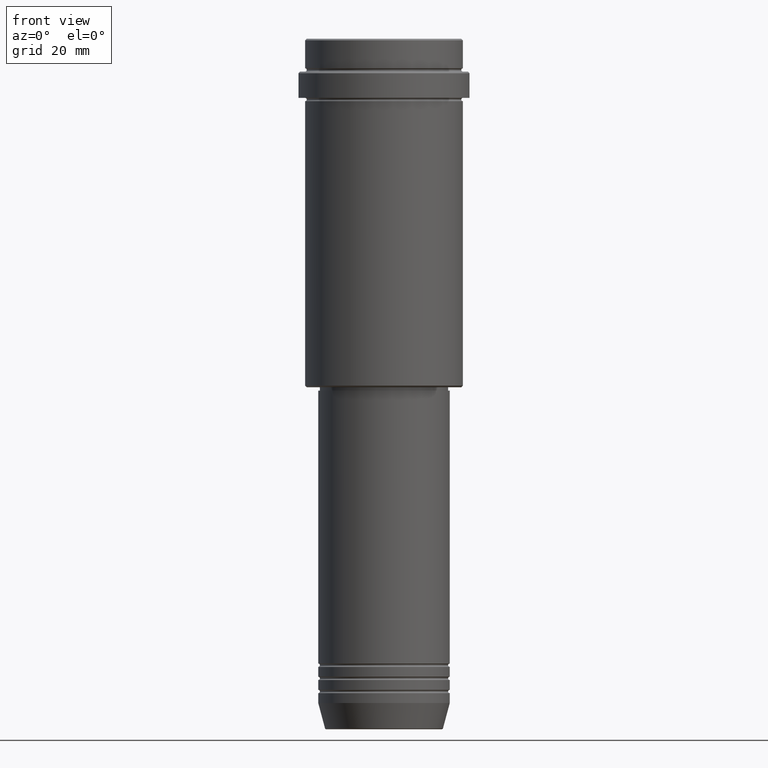
[diagram: clean part render]
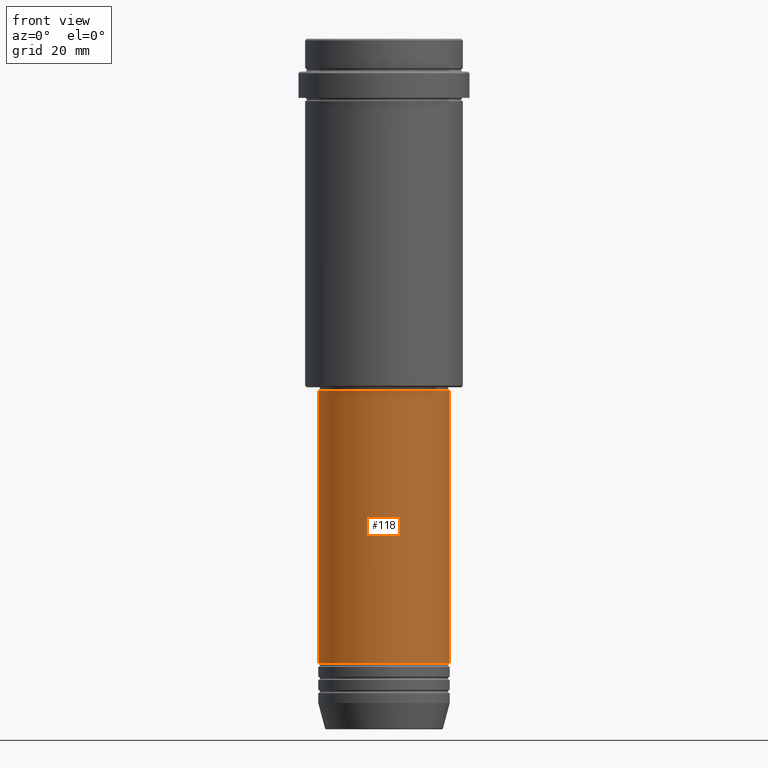
[diagram: same view with one face highlighted and labeled with its STEP entity id]
A machine part, front view. The second image highlights one B-rep face of the part: STEP entity #118.
In plain terms, the highlighted cylindrical surface (partial cylindrical patch) has radius 20 mm, axis along (-0, -0, 1).
Its self-contained STEP definition (entity closure, byte-faithful):
#7 = VECTOR ( 'NONE', #929, 1000.000000000000000 ) ;
#16 = EDGE_CURVE ( 'NONE', #646, #911, #835, .T. ) ;
#43 = DIRECTION ( 'NONE',  ( -0.000000000000000000, -0.000000000000000000, 1.000000000000000000 ) ) ;
#56 = VECTOR ( 'NONE', #43, 1000.000000000000000 ) ;
#81 = AXIS2_PLACEMENT_3D ( 'NONE', #659, #1093, #111 ) ;
#111 = DIRECTION ( 'NONE',  ( 1.000000000000000000, 0.000000000000000000, 0.000000000000000000 ) ) ;
#118 = ADVANCED_FACE ( 'NONE', ( #986 ), #225, .T. ) ;
#137 = DIRECTION ( 'NONE',  ( 1.000000000000000000, 0.000000000000000000, 0.000000000000000000 ) ) ;
#138 = CARTESIAN_POINT ( 'NONE',  ( -20.00000000000000000, 2.449293598294706513E-15, -189.9999999999999147 ) ) ;
#213 = ORIENTED_EDGE ( 'NONE', *, *, #1043, .F. ) ;
#216 = AXIS2_PLACEMENT_3D ( 'NONE', #1254, #571, #137 ) ;
#225 = CYLINDRICAL_SURFACE ( 'NONE', #81, 20.00000000000000000 ) ;
#306 = EDGE_LOOP ( 'NONE', ( #213, #1072, #1408, #1167 ) ) ;
#391 = LINE ( 'NONE', #1354, #7 ) ;
#396 = VERTEX_POINT ( 'NONE', #638 ) ;
#429 = VERTEX_POINT ( 'NONE', #992 ) ;
#564 = EDGE_CURVE ( 'NONE', #911, #396, #391, .T. ) ;
#571 = DIRECTION ( 'NONE',  ( -0.000000000000000000, -0.000000000000000000, 1.000000000000000000 ) ) ;
#574 = DIRECTION ( 'NONE',  ( -0.000000000000000000, -0.000000000000000000, 1.000000000000000000 ) ) ;
#638 = CARTESIAN_POINT ( 'NONE',  ( 20.00000000000000000, 0.000000000000000000, -107.0000000000000000 ) ) ;
#646 = VERTEX_POINT ( 'NONE', #138 ) ;
#659 = CARTESIAN_POINT ( 'NONE',  ( 0.000000000000000000, 0.000000000000000000, 0.000000000000000000 ) ) ;
#678 = DIRECTION ( 'NONE',  ( 1.000000000000000000, 0.000000000000000000, 0.000000000000000000 ) ) ;
#721 = CIRCLE ( 'NONE', #216, 20.00000000000000000 ) ;
#835 = CIRCLE ( 'NONE', #1129, 20.00000000000000000 ) ;
#883 = CARTESIAN_POINT ( 'NONE',  ( 0.000000000000000000, 0.000000000000000000, -189.9999999999999147 ) ) ;
#911 = VERTEX_POINT ( 'NONE', #1193 ) ;
#918 = CARTESIAN_POINT ( 'NONE',  ( -20.00000000000000000, 2.449293598294706513E-15, 0.000000000000000000 ) ) ;
#929 = DIRECTION ( 'NONE',  ( -0.000000000000000000, -0.000000000000000000, 1.000000000000000000 ) ) ;
#986 = FACE_OUTER_BOUND ( 'NONE', #306, .T. ) ;
#992 = CARTESIAN_POINT ( 'NONE',  ( -20.00000000000000000, 2.449293598294706513E-15, -107.0000000000000000 ) ) ;
#1043 = EDGE_CURVE ( 'NONE', #646, #429, #1141, .T. ) ;
#1072 = ORIENTED_EDGE ( 'NONE', *, *, #16, .T. ) ;
#1093 = DIRECTION ( 'NONE',  ( -0.000000000000000000, -0.000000000000000000, 1.000000000000000000 ) ) ;
#1101 = EDGE_CURVE ( 'NONE', #429, #396, #721, .T. ) ;
#1129 = AXIS2_PLACEMENT_3D ( 'NONE', #883, #574, #678 ) ;
#1141 = LINE ( 'NONE', #918, #56 ) ;
#1167 = ORIENTED_EDGE ( 'NONE', *, *, #1101, .F. ) ;
#1193 = CARTESIAN_POINT ( 'NONE',  ( 20.00000000000000000, 0.000000000000000000, -189.9999999999999147 ) ) ;
#1254 = CARTESIAN_POINT ( 'NONE',  ( 0.000000000000000000, 0.000000000000000000, -107.0000000000000000 ) ) ;
#1354 = CARTESIAN_POINT ( 'NONE',  ( 20.00000000000000000, 0.000000000000000000, 0.000000000000000000 ) ) ;
#1408 = ORIENTED_EDGE ( 'NONE', *, *, #564, .T. ) ;